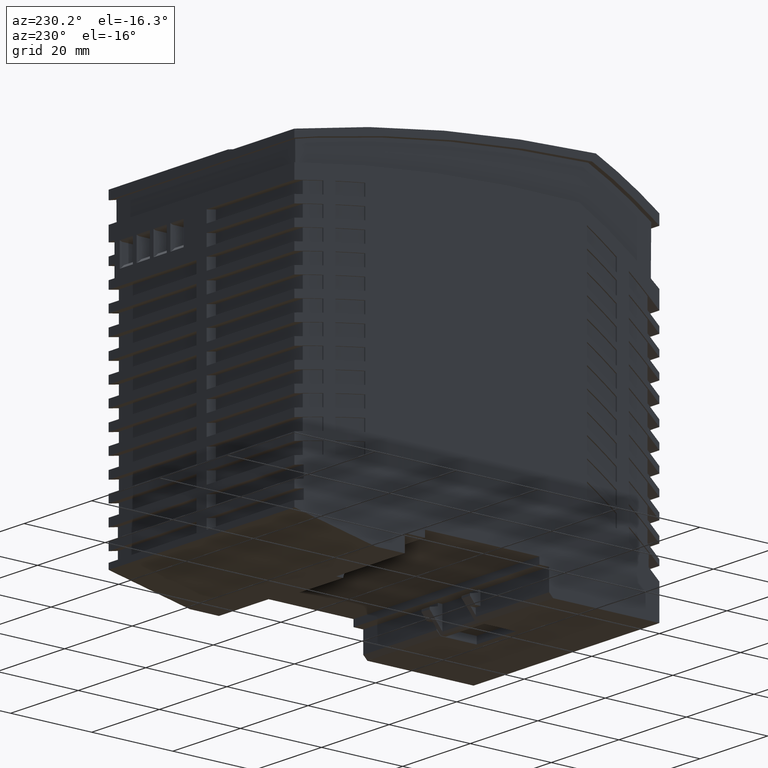
[diagram: clean part render]
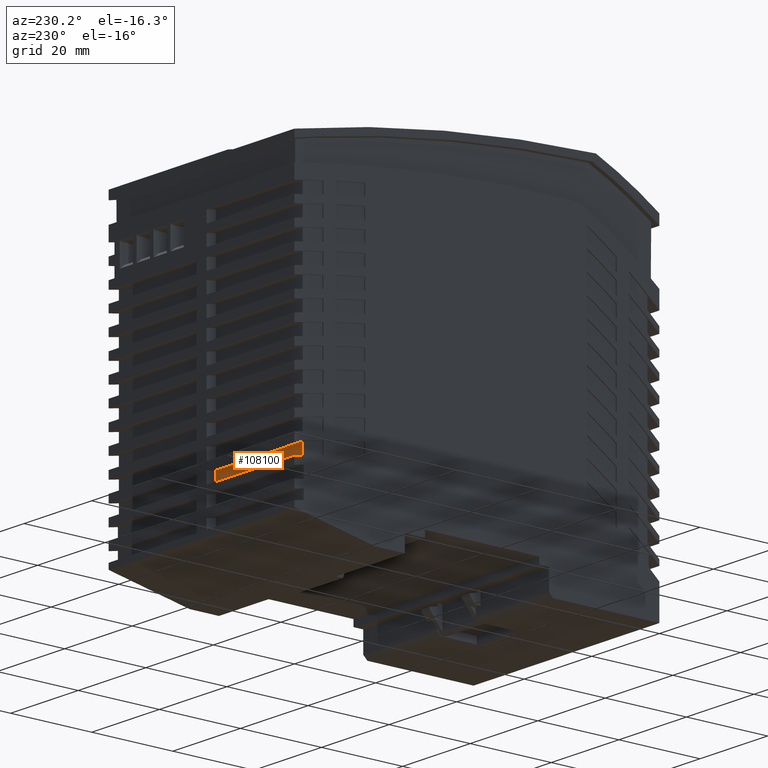
[diagram: same view with one face highlighted and labeled with its STEP entity id]
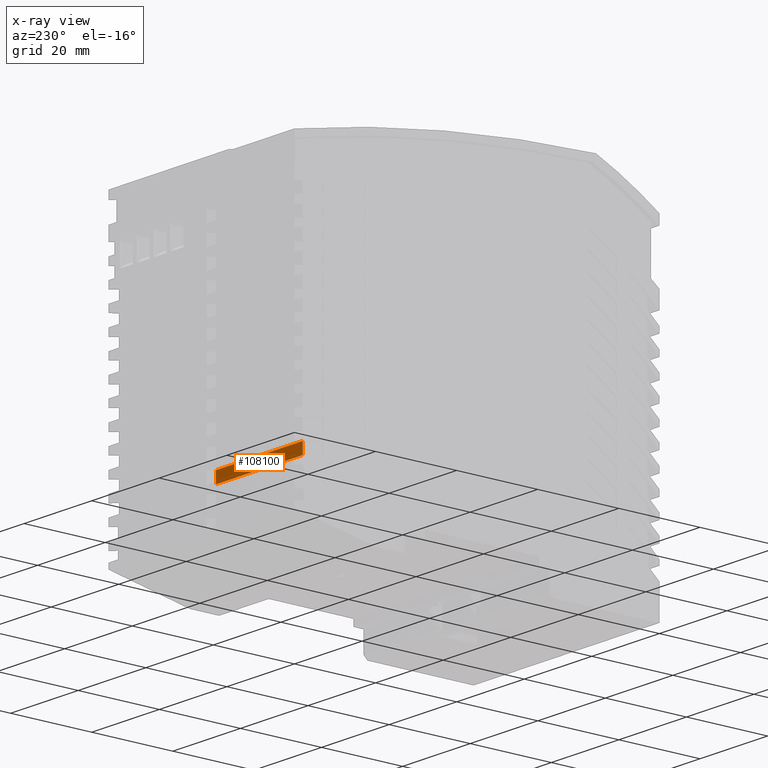
[diagram: x-ray of the same camera — body ghosted, the highlighted face saturated]
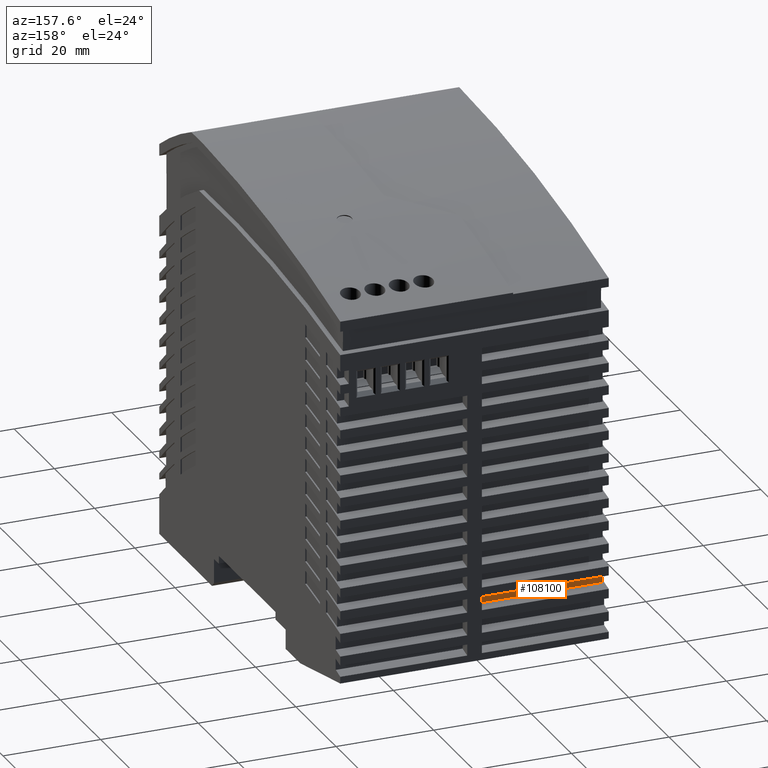
[diagram: same view with one face highlighted and labeled with its STEP entity id]
A machine part, auxiliary view. The second image highlights one B-rep face of the part: STEP entity #108100.
The next image is the same camera in x-ray: the body ghosted, the highlighted face saturated — about 0% of this face is hidden behind the body in this view.
A second angle (auxiliary view) of the same face is appended — the face is thin or edge-on in the first view.
In plain terms, the highlighted planar face has unit normal (0, -1, 0).
Its self-contained STEP definition (entity closure, byte-faithful):
#68920=CARTESIAN_POINT('',(42.6984763926292,0.,-53.7));
#68930=DIRECTION('',(0.,1.,0.));
#68940=VECTOR('',#68930,1.);
#68950=LINE('',#68920,#68940);
#68960=CARTESIAN_POINT('',(42.6984763926292,16.8104634544222,-53.7));
#68970=VERTEX_POINT('',#68960);
#68980=CARTESIAN_POINT('',(42.698476392629,19.6053622469337,-53.7));
#68990=VERTEX_POINT('',#68980);
#69000=EDGE_CURVE('',#68970,#68990,#68950,.T.);
#69710=CARTESIAN_POINT('',(42.6984763926292,19.6053622469337,-28.));
#69720=DIRECTION('',(0.,0.,-1.));
#69730=VECTOR('',#69720,1.);
#69740=LINE('',#69710,#69730);
#69750=CARTESIAN_POINT('',(42.698476392629,19.6053622469337,-28.));
#69760=VERTEX_POINT('',#69750);
#69770=EDGE_CURVE('',#69760,#68990,#69740,.T.);
#70500=CARTESIAN_POINT('',(42.6984763926292,16.8104634544222,-28.));
#70510=VERTEX_POINT('',#70500);
#70540=CARTESIAN_POINT('',(42.6984763926292,16.8104634544224,-28.));
#70550=DIRECTION('',(0.,0.,-1.));
#70560=VECTOR('',#70550,1.);
#70570=LINE('',#70540,#70560);
#70580=EDGE_CURVE('',#70510,#68970,#70570,.T.);
#107620=CARTESIAN_POINT('',(42.6984763926292,90.0290722762113,-28.));
#107630=DIRECTION('',(0.,-1.,0.));
#107640=VECTOR('',#107630,1.);
#107650=LINE('',#107620,#107640);
#107660=EDGE_CURVE('',#69760,#70510,#107650,.T.);
#107990=CARTESIAN_POINT('',(42.6984763926292,19.6053622469337,-28.));
#108000=DIRECTION('',(-1.,0.,0.));
#108010=DIRECTION('',(0.,-1.,0.));
#108020=AXIS2_PLACEMENT_3D('',#107990,#108000,#108010);
#108030=PLANE('',#108020);
#108040=ORIENTED_EDGE('',*,*,#70580,.T.);
#108050=ORIENTED_EDGE('',*,*,#107660,.T.);
#108060=ORIENTED_EDGE('',*,*,#69770,.F.);
#108070=ORIENTED_EDGE('',*,*,#69000,.T.);
#108080=EDGE_LOOP('',(#108070,#108060,#108050,#108040));
#108090=FACE_OUTER_BOUND('',#108080,.T.);
#108100=ADVANCED_FACE('',(#108090),#108030,.F.);